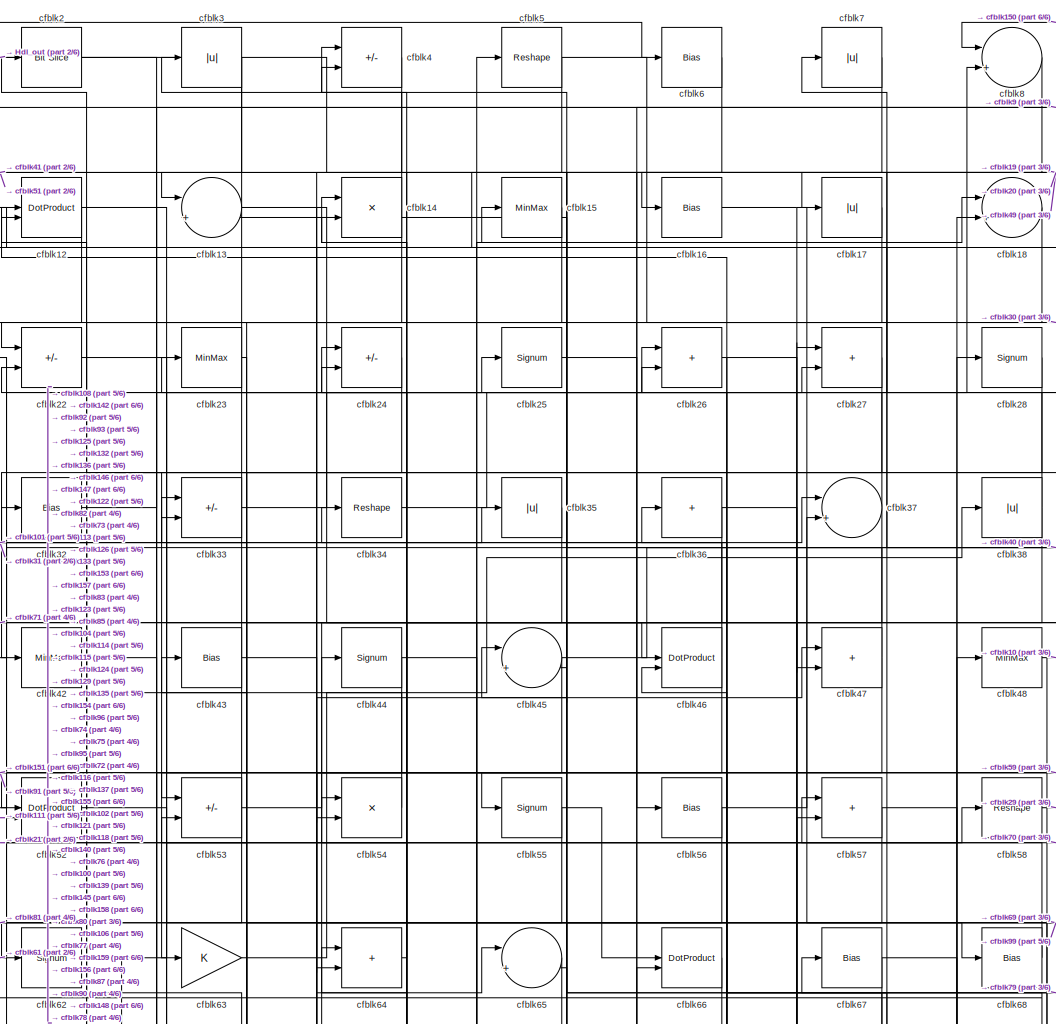
[diagram: root canvas - part 1/6, top center region]
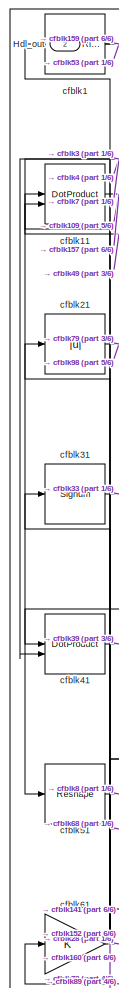
[diagram: root canvas - part 2/6, top left region]
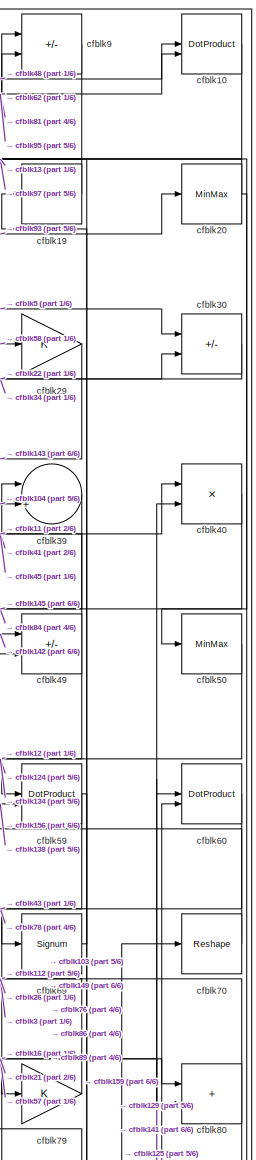
[diagram: root canvas - part 3/6, top right region]
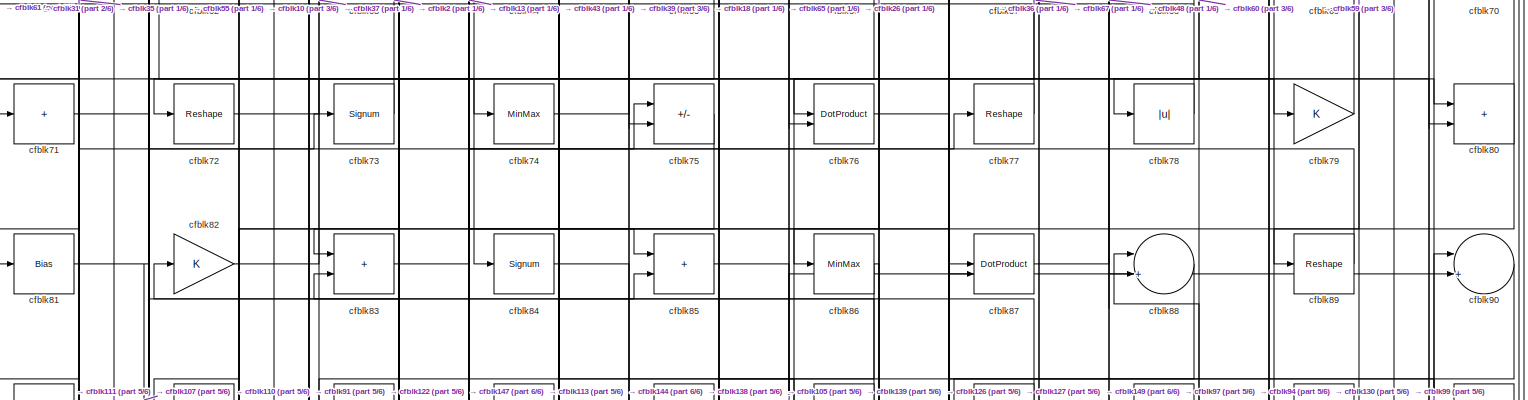
[diagram: root canvas - part 4/6, full width, middle band]
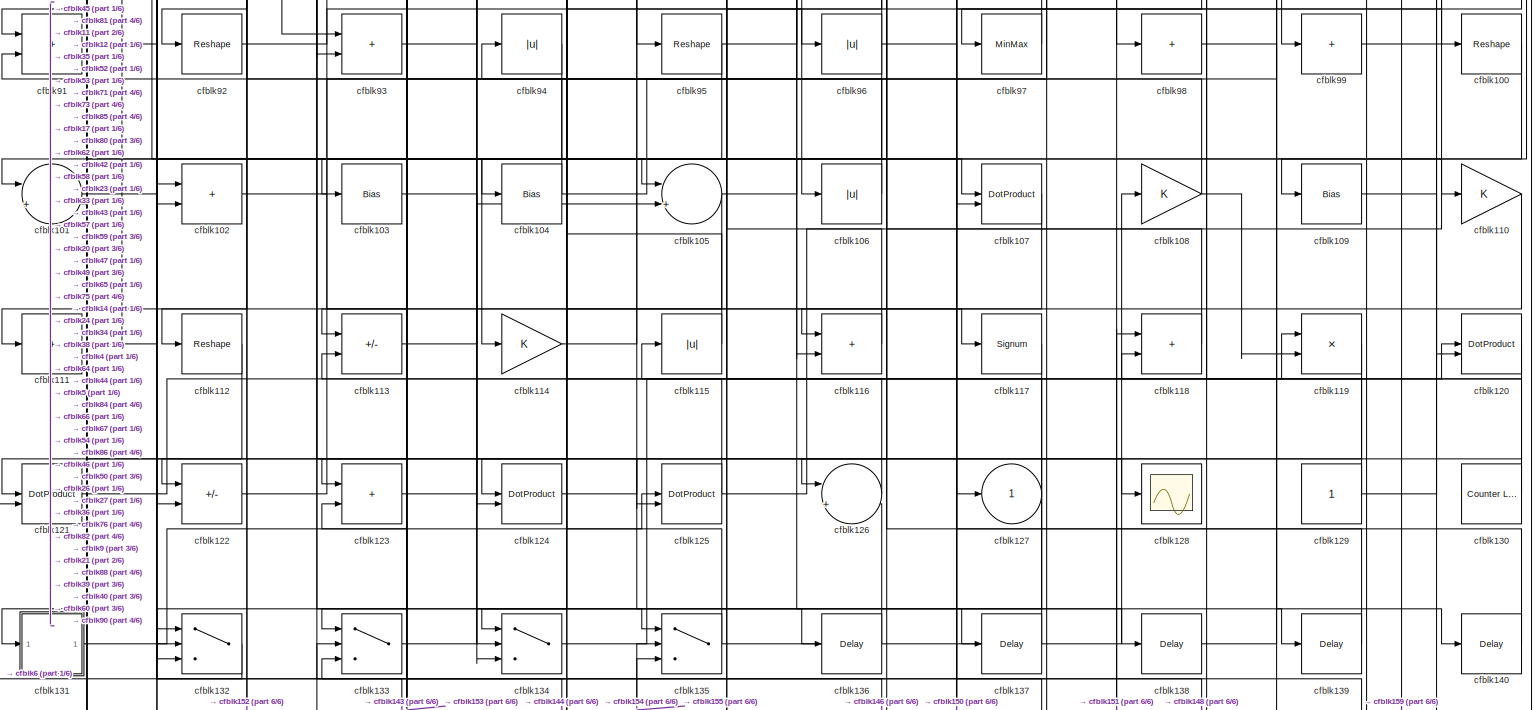
[diagram: root canvas - part 5/6, full width, bottom band]
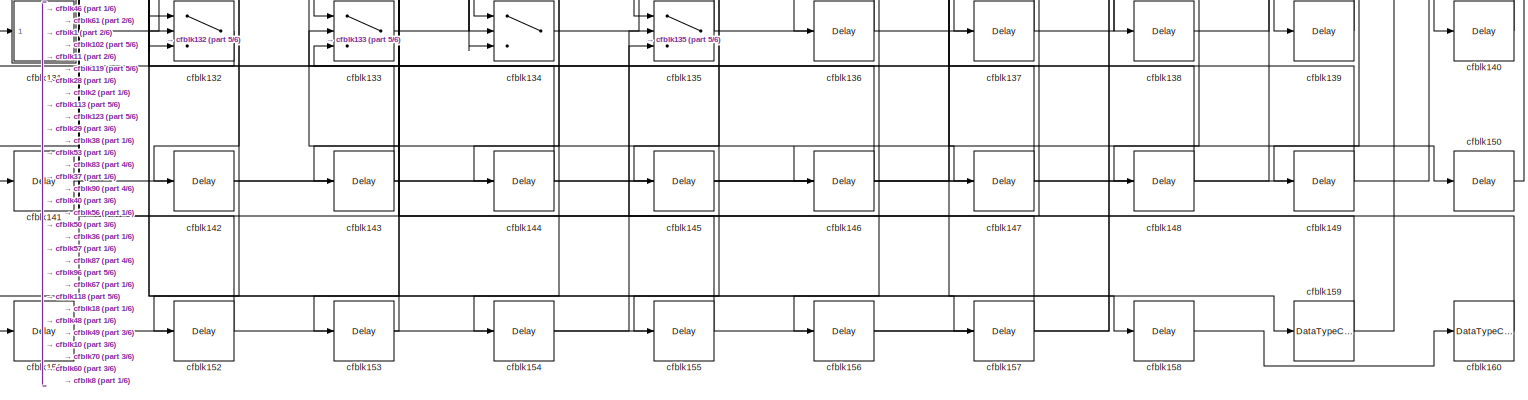
[diagram: root canvas - part 6/6, full width, bottom band]
MODEL slx_1be6892a0c39
KIND model
CONFIG AbsTol = auto
CONFIG EnableMultiTasking = off
CONFIG FixedStep = auto
CONFIG MaxStep = auto
CONFIG MinStep = auto
CONFIG RelTol = 1e-3
CONFIG SampleTimeConstraint = Unconstrained
CONFIG SolverName = VariableStepAuto
CONFIG StartTime = 0.0
CONFIG StopTime = 10.0
BLOCK [Outport] Hdl_out
  OutDataTypeStr = uint8
  Port = 2
BLOCK [Reference] cfblk1  REF=hdlsllib/Logic and Bit
Operations/Detect Rise
Nonnegative
  SourceBlock = hdlsllib/Logic and Bit\nOperations/Detect Rise\nNonnegative
  SourceType = Detect Rise Nonnegative
BLOCK [DotProduct] cfblk10
  OutDataTypeStr = uint8
BLOCK [Reshape] cfblk100
BLOCK [Sum] cfblk101
  Inputs = |++
  OutDataTypeStr = uint8
BLOCK [Sum] cfblk102
  IconShape = rectangular
  OutDataTypeStr = uint8
BLOCK [Bias] cfblk103
  Bias = 0.0
  SaturateOnIntegerOverflow = off
BLOCK [Bias] cfblk104
  Bias = 0.0
  SaturateOnIntegerOverflow = off
BLOCK [Sum] cfblk105
  Inputs = |++
  OutDataTypeStr = uint8
BLOCK [Abs] cfblk106
  OutDataTypeStr = uint8
  SaturateOnIntegerOverflow = off
BLOCK [DotProduct] cfblk107
  OutDataTypeStr = uint8
BLOCK [Gain] cfblk108
  OutDataTypeStr = uint8
BLOCK [Bias] cfblk109
  Bias = 0.0
  SaturateOnIntegerOverflow = off
BLOCK [DotProduct] cfblk11
  OutDataTypeStr = uint8
BLOCK [Gain] cfblk110
  OutDataTypeStr = uint8
BLOCK [Sum] cfblk111
  IconShape = rectangular
  Inputs = +
  OutDataTypeStr = uint8
BLOCK [Reshape] cfblk112
BLOCK [Sum] cfblk113
  IconShape = rectangular
  Inputs = +-
  OutDataTypeStr = uint8
BLOCK [Gain] cfblk114
  OutDataTypeStr = uint8
BLOCK [Abs] cfblk115
  OutDataTypeStr = uint8
  SaturateOnIntegerOverflow = off
BLOCK [Sum] cfblk116
  IconShape = rectangular
  OutDataTypeStr = uint8
BLOCK [Signum] cfblk117
BLOCK [Sum] cfblk118
  IconShape = rectangular
  OutDataTypeStr = uint8
BLOCK [Product] cfblk119
  Inputs = */
  OutDataTypeStr = uint8
  RndMeth = Zero
  SaturateOnIntegerOverflow = on
BLOCK [DotProduct] cfblk12
  OutDataTypeStr = uint8
BLOCK [DotProduct] cfblk120
  OutDataTypeStr = uint8
BLOCK [DotProduct] cfblk121
  OutDataTypeStr = uint8
BLOCK [Sum] cfblk122
  IconShape = rectangular
  Inputs = +-
  OutDataTypeStr = uint8
BLOCK [Sum] cfblk123
  IconShape = rectangular
  OutDataTypeStr = uint8
BLOCK [DotProduct] cfblk124
  OutDataTypeStr = uint8
BLOCK [DotProduct] cfblk125
  OutDataTypeStr = uint8
BLOCK [Sum] cfblk126
  Inputs = |++
  OutDataTypeStr = uint8
BLOCK [Outport] cfblk127
  OutDataTypeStr = uint8
  VectorParamsAs1DForOutWhenUnconnected = off
BLOCK [Scope] cfblk128
  Floating = off
  NumInputPorts = 1
  ScopeSpecificationString = Simulink.scopes.TimeScopeBlockCfg('CurrentConfiguration', extmgr.ConfigurationSet(extmgr.Configuration('Core','General UI',true),extmgr.Configuration('Core','Source UI',true),extmgr.Configuration('Sources','WiredSimulink',true,'DataLoggingVariableName','ScopeData2','DataLoggingSaveFormat','Array','DataLoggingLimitDataPoints',true,'DataLoggingDecimation','1'),extmgr.Configuration('Visuals','Time Do...<+868ch>
BLOCK [Constant] cfblk129
  OutDataTypeStr = uint8
  SampleTime = -1
BLOCK [Sum] cfblk13
  Inputs = |++
  OutDataTypeStr = uint8
BLOCK [Reference] cfblk130  REF=hdlsllib/Sources/Counter
Limited
  SourceBlock = hdlsllib/Sources/Counter\nLimited
  SourceType = Counter Limited
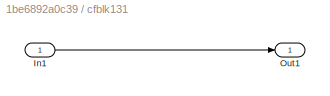
BLOCK [SubSystem] cfblk131
  LibrarySourceBlock = hdlsllib/Ports &\nSubsystems/Subsystem
BLOCK [Inport] cfblk131/In1
BLOCK [Outport] cfblk131/Out1
BLOCK [Switch] cfblk132
  InputSameDT = off
  OutDataTypeStr = uint8
  SaturateOnIntegerOverflow = off
BLOCK [Switch] cfblk133
  InputSameDT = off
  OutDataTypeStr = uint8
  SaturateOnIntegerOverflow = off
BLOCK [Switch] cfblk134
  InputSameDT = off
  OutDataTypeStr = uint8
  SaturateOnIntegerOverflow = off
BLOCK [Switch] cfblk135
  InputSameDT = off
  OutDataTypeStr = uint8
  SaturateOnIntegerOverflow = off
BLOCK [Delay] cfblk136
  InputPortMap = u0
  SampleTime = 1
BLOCK [Delay] cfblk137
  InputPortMap = u0
  SampleTime = 1
BLOCK [Delay] cfblk138
  InputPortMap = u0
  SampleTime = 1
BLOCK [Delay] cfblk139
  InputPortMap = u0
  SampleTime = 1
BLOCK [Product] cfblk14
  Inputs = */
  OutDataTypeStr = uint8
  RndMeth = Zero
  SaturateOnIntegerOverflow = on
BLOCK [Delay] cfblk140
  InputPortMap = u0
  SampleTime = 1
BLOCK [Delay] cfblk141
  InputPortMap = u0
  SampleTime = 1
BLOCK [Delay] cfblk142
  InputPortMap = u0
  SampleTime = 1
BLOCK [Delay] cfblk143
  InputPortMap = u0
  SampleTime = 1
BLOCK [Delay] cfblk144
  InputPortMap = u0
  SampleTime = 1
BLOCK [Delay] cfblk145
  InputPortMap = u0
  SampleTime = 1
BLOCK [Delay] cfblk146
  InputPortMap = u0
  SampleTime = 1
BLOCK [Delay] cfblk147
  InputPortMap = u0
  SampleTime = 1
BLOCK [Delay] cfblk148
  InputPortMap = u0
  SampleTime = 1
BLOCK [Delay] cfblk149
  InputPortMap = u0
  SampleTime = 1
BLOCK [MinMax] cfblk15
  OutDataTypeStr = uint8
BLOCK [Delay] cfblk150
  InputPortMap = u0
  SampleTime = 1
BLOCK [Delay] cfblk151
  InputPortMap = u0
  SampleTime = 1
BLOCK [Delay] cfblk152
  InputPortMap = u0
  SampleTime = 1
BLOCK [Delay] cfblk153
  InputPortMap = u0
  SampleTime = 1
BLOCK [Delay] cfblk154
  InputPortMap = u0
  SampleTime = 1
BLOCK [Delay] cfblk155
  InputPortMap = u0
  SampleTime = 1
BLOCK [Delay] cfblk156
  InputPortMap = u0
  SampleTime = 1
BLOCK [Delay] cfblk157
  InputPortMap = u0
  SampleTime = 1
BLOCK [Delay] cfblk158
  InputPortMap = u0
  SampleTime = 1
BLOCK [DataTypeConversion] cfblk159
  OutDataTypeStr = uint8
  RndMeth = Floor
  SaturateOnIntegerOverflow = off
BLOCK [Bias] cfblk16
  Bias = 0.0
  SaturateOnIntegerOverflow = off
BLOCK [DataTypeConversion] cfblk160
  OutDataTypeStr = uint8
  RndMeth = Floor
  SaturateOnIntegerOverflow = off
BLOCK [Abs] cfblk17
  OutDataTypeStr = uint8
  SaturateOnIntegerOverflow = off
BLOCK [Sum] cfblk18
  Inputs = |++
  OutDataTypeStr = uint8
BLOCK [Bias] cfblk19
  Bias = 0.0
  SaturateOnIntegerOverflow = off
BLOCK [Reference] cfblk2  REF=hdlsllib/Logic and Bit
Operations/Bit Slice
  SourceBlock = hdlsllib/Logic and Bit\nOperations/Bit Slice
  SourceType = Bit Slice
BLOCK [MinMax] cfblk20
  OutDataTypeStr = uint8
BLOCK [Abs] cfblk21
  OutDataTypeStr = uint8
  SaturateOnIntegerOverflow = off
BLOCK [Sum] cfblk22
  IconShape = rectangular
  Inputs = +-
  OutDataTypeStr = uint8
BLOCK [MinMax] cfblk23
  OutDataTypeStr = uint8
BLOCK [Sum] cfblk24
  IconShape = rectangular
  Inputs = +-
  OutDataTypeStr = uint8
BLOCK [Signum] cfblk25
BLOCK [Sum] cfblk26
  IconShape = rectangular
  OutDataTypeStr = uint8
BLOCK [Sum] cfblk27
  IconShape = rectangular
  OutDataTypeStr = uint8
BLOCK [Signum] cfblk28
BLOCK [Gain] cfblk29
  OutDataTypeStr = uint8
BLOCK [Abs] cfblk3
  OutDataTypeStr = uint8
  SaturateOnIntegerOverflow = off
BLOCK [Sum] cfblk30
  IconShape = rectangular
  Inputs = +-
  OutDataTypeStr = uint8
BLOCK [Signum] cfblk31
BLOCK [Bias] cfblk32
  Bias = 0.0
  SaturateOnIntegerOverflow = off
BLOCK [Sum] cfblk33
  IconShape = rectangular
  Inputs = +-
  OutDataTypeStr = uint8
BLOCK [Reshape] cfblk34
BLOCK [Abs] cfblk35
  OutDataTypeStr = uint8
  SaturateOnIntegerOverflow = off
BLOCK [Sum] cfblk36
  IconShape = rectangular
  Inputs = +
  OutDataTypeStr = uint8
BLOCK [Sum] cfblk37
  Inputs = |++
  OutDataTypeStr = uint8
BLOCK [Abs] cfblk38
  OutDataTypeStr = uint8
  SaturateOnIntegerOverflow = off
BLOCK [Sum] cfblk39
  Inputs = |++
  OutDataTypeStr = uint8
BLOCK [Sum] cfblk4
  IconShape = rectangular
  Inputs = +-
  OutDataTypeStr = uint8
BLOCK [Product] cfblk40
  Inputs = */
  OutDataTypeStr = uint8
  RndMeth = Zero
  SaturateOnIntegerOverflow = on
BLOCK [DotProduct] cfblk41
  OutDataTypeStr = uint8
BLOCK [MinMax] cfblk42
  OutDataTypeStr = uint8
BLOCK [Bias] cfblk43
  Bias = 0.0
  SaturateOnIntegerOverflow = off
BLOCK [Signum] cfblk44
BLOCK [Sum] cfblk45
  Inputs = |++
  OutDataTypeStr = uint8
BLOCK [DotProduct] cfblk46
  OutDataTypeStr = uint8
BLOCK [Sum] cfblk47
  IconShape = rectangular
  OutDataTypeStr = uint8
BLOCK [MinMax] cfblk48
  OutDataTypeStr = uint8
BLOCK [Sum] cfblk49
  IconShape = rectangular
  Inputs = +-
  OutDataTypeStr = uint8
BLOCK [Reshape] cfblk5
BLOCK [MinMax] cfblk50
  OutDataTypeStr = uint8
BLOCK [Reshape] cfblk51
BLOCK [DotProduct] cfblk52
  OutDataTypeStr = uint8
BLOCK [Sum] cfblk53
  IconShape = rectangular
  Inputs = +-
  OutDataTypeStr = uint8
BLOCK [Product] cfblk54
  Inputs = */
  OutDataTypeStr = uint8
  RndMeth = Zero
  SaturateOnIntegerOverflow = on
BLOCK [Signum] cfblk55
BLOCK [Bias] cfblk56
  Bias = 0.0
  SaturateOnIntegerOverflow = off
BLOCK [Sum] cfblk57
  IconShape = rectangular
  OutDataTypeStr = uint8
BLOCK [Reshape] cfblk58
BLOCK [DotProduct] cfblk59
  OutDataTypeStr = uint8
BLOCK [Bias] cfblk6
  Bias = 0.0
  SaturateOnIntegerOverflow = off
BLOCK [DotProduct] cfblk60
  OutDataTypeStr = uint8
BLOCK [Gain] cfblk61
  OutDataTypeStr = uint8
BLOCK [Signum] cfblk62
BLOCK [Gain] cfblk63
  OutDataTypeStr = uint8
BLOCK [Sum] cfblk64
  IconShape = rectangular
  OutDataTypeStr = uint8
BLOCK [Sum] cfblk65
  Inputs = |++
  OutDataTypeStr = uint8
BLOCK [DotProduct] cfblk66
  OutDataTypeStr = uint8
BLOCK [Bias] cfblk67
  Bias = 0.0
  SaturateOnIntegerOverflow = off
BLOCK [Bias] cfblk68
  Bias = 0.0
  SaturateOnIntegerOverflow = off
BLOCK [Signum] cfblk69
BLOCK [Abs] cfblk7
  OutDataTypeStr = uint8
  SaturateOnIntegerOverflow = off
BLOCK [Reshape] cfblk70
BLOCK [Sum] cfblk71
  IconShape = rectangular
  Inputs = +
  OutDataTypeStr = uint8
BLOCK [Reshape] cfblk72
BLOCK [Signum] cfblk73
BLOCK [MinMax] cfblk74
  OutDataTypeStr = uint8
BLOCK [Sum] cfblk75
  IconShape = rectangular
  Inputs = +-
  OutDataTypeStr = uint8
BLOCK [DotProduct] cfblk76
  OutDataTypeStr = uint8
BLOCK [Reshape] cfblk77
BLOCK [Abs] cfblk78
  OutDataTypeStr = uint8
  SaturateOnIntegerOverflow = off
BLOCK [Gain] cfblk79
  OutDataTypeStr = uint8
BLOCK [Sum] cfblk8
  Inputs = |++
  OutDataTypeStr = uint8
BLOCK [Sum] cfblk80
  IconShape = rectangular
  OutDataTypeStr = uint8
BLOCK [Bias] cfblk81
  Bias = 0.0
  SaturateOnIntegerOverflow = off
BLOCK [Gain] cfblk82
  OutDataTypeStr = uint8
BLOCK [Sum] cfblk83
  IconShape = rectangular
  OutDataTypeStr = uint8
BLOCK [Signum] cfblk84
BLOCK [Sum] cfblk85
  IconShape = rectangular
  OutDataTypeStr = uint8
BLOCK [MinMax] cfblk86
  OutDataTypeStr = uint8
BLOCK [DotProduct] cfblk87
  OutDataTypeStr = uint8
BLOCK [Sum] cfblk88
  Inputs = |++
  OutDataTypeStr = uint8
BLOCK [Reshape] cfblk89
BLOCK [Sum] cfblk9
  IconShape = rectangular
  Inputs = +-
  OutDataTypeStr = uint8
BLOCK [Sum] cfblk90
  Inputs = |++
  OutDataTypeStr = uint8
BLOCK [Sum] cfblk91
  IconShape = rectangular
  OutDataTypeStr = uint8
BLOCK [Reshape] cfblk92
BLOCK [Sum] cfblk93
  IconShape = rectangular
  OutDataTypeStr = uint8
BLOCK [Abs] cfblk94
  OutDataTypeStr = uint8
  SaturateOnIntegerOverflow = off
BLOCK [Reshape] cfblk95
BLOCK [Abs] cfblk96
  OutDataTypeStr = uint8
  SaturateOnIntegerOverflow = off
BLOCK [MinMax] cfblk97
  OutDataTypeStr = uint8
BLOCK [Sum] cfblk98
  IconShape = rectangular
  Inputs = +
  OutDataTypeStr = uint8
BLOCK [Sum] cfblk99
  IconShape = rectangular
  Inputs = +
  OutDataTypeStr = uint8
NET cfblk100:1 -> cfblk101:1, cfblk116:2
LINE cfblk101:1 -> cfblk35:1
NET cfblk102:1 -> cfblk117:1, cfblk66:2
LINE cfblk103:1 -> cfblk134:2
NET cfblk104:1 -> cfblk39:2, cfblk43:1
NET cfblk105:1 -> cfblk134:1, cfblk88:2
LINE cfblk106:1 -> cfblk24:1
LINE cfblk107:1 -> cfblk111:1
NET cfblk108:1 -> cfblk119:2, cfblk12:1
LINE cfblk109:1 -> cfblk120:2
NET cfblk10:1 -> cfblk149:1, cfblk76:2
LINE cfblk110:1 -> cfblk116:1
NET cfblk111:1 -> cfblk52:2, cfblk73:1
LINE cfblk112:1 -> cfblk121:1
LINE cfblk113:1 -> cfblk75:1
NET cfblk114:1 -> cfblk34:1, cfblk5:1
LINE cfblk115:1 -> cfblk4:1
LINE cfblk116:1 -> cfblk45:1
NET cfblk117:1 -> cfblk132:3, cfblk137:1
LINE cfblk118:1 -> cfblk46:2
LINE cfblk119:1 -> cfblk152:1
NET cfblk11:1 -> cfblk109:1, cfblk157:1
NET cfblk120:1 -> cfblk118:2, cfblk131:1
LINE cfblk121:1 -> cfblk119:1
LINE cfblk122:1 -> cfblk58:1
NET cfblk123:1 -> cfblk47:1, cfblk65:1
LINE cfblk124:1 -> cfblk128:1
NET cfblk125:1 -> cfblk115:1, cfblk60:2
LINE cfblk126:1 -> cfblk33:1
NET cfblk129:1 -> cfblk14:2, cfblk40:2
NET cfblk12:1 -> cfblk125:2, cfblk132:2, cfblk59:1
LINE cfblk130:1 -> cfblk88:1
LINE cfblk131/In1:1 -> cfblk131/Out1:1
LINE cfblk131:1 -> cfblk125:1
LINE cfblk132:1 -> cfblk6:1
NET cfblk133:1 -> cfblk105:2, cfblk135:1
LINE cfblk134:1 -> cfblk120:1
NET cfblk135:1 -> cfblk108:1, cfblk64:1
LINE cfblk136:1 -> cfblk126:2
LINE cfblk137:1 -> cfblk65:2
LINE cfblk138:1 -> cfblk59:2
LINE cfblk139:1 -> cfblk27:1
NET cfblk13:1 -> cfblk47:2, cfblk75:2, cfblk87:2
LINE cfblk140:1 -> cfblk12:2
LINE cfblk141:1 -> cfblk60:1
LINE cfblk142:1 -> cfblk49:1
LINE cfblk143:1 -> cfblk102:1
LINE cfblk144:1 -> cfblk133:3
LINE cfblk145:1 -> cfblk57:2
LINE cfblk146:1 -> cfblk132:1
LINE cfblk147:1 -> cfblk83:2
LINE cfblk148:1 -> cfblk133:2
LINE cfblk149:1 -> cfblk87:1
NET cfblk14:1 -> cfblk22:1, cfblk4:2
LINE cfblk150:1 -> cfblk8:1
LINE cfblk151:1 -> cfblk118:1
LINE cfblk152:1 -> cfblk11:2
LINE cfblk153:1 -> cfblk123:2
LINE cfblk154:1 -> cfblk135:3
LINE cfblk155:1 -> cfblk135:2
LINE cfblk156:1 -> cfblk18:2
LINE cfblk157:1 -> cfblk53:2
LINE cfblk158:1 -> cfblk160:1
NET cfblk159:1 -> cfblk113:2, cfblk67:1, cfblk70:1
LINE cfblk15:1 -> cfblk52:1
LINE cfblk160:1 -> cfblk1:1
NET cfblk16:1 -> cfblk68:1, cfblk80:2
LINE cfblk17:1 -> cfblk92:1
LINE cfblk18:1 -> cfblk83:1
LINE cfblk19:1 -> cfblk16:1
LINE cfblk1:1 -> cfblk159:1
NET cfblk20:1 -> cfblk13:1, cfblk50:1
NET cfblk21:1 -> cfblk79:1, cfblk98:1
LINE cfblk22:1 -> cfblk46:1
LINE cfblk23:1 -> cfblk113:1
NET cfblk24:1 -> cfblk62:1, cfblk63:1
LINE cfblk25:1 -> cfblk56:1
NET cfblk26:1 -> cfblk100:1, cfblk76:1
NET cfblk27:1 -> cfblk42:1, cfblk53:1
LINE cfblk28:1 -> cfblk142:1
LINE cfblk29:1 -> cfblk143:1
NET cfblk2:1 -> cfblk146:1, cfblk147:1
LINE cfblk30:1 -> cfblk22:2
LINE cfblk31:1 -> cfblk33:2
LINE cfblk32:1 -> cfblk26:1
LINE cfblk33:1 -> cfblk27:2
LINE cfblk34:1 -> cfblk30:2
LINE cfblk35:1 -> cfblk71:1
NET cfblk36:1 -> cfblk102:2, cfblk158:1
NET cfblk37:1 -> cfblk154:1, cfblk23:1
NET cfblk38:1 -> cfblk124:1, cfblk153:1, cfblk7:1
LINE cfblk39:1 -> cfblk84:1
NET cfblk3:1 -> cfblk41:2, cfblk49:2
LINE cfblk40:1 -> cfblk145:1
LINE cfblk41:1 -> cfblk39:1
LINE cfblk42:1 -> cfblk136:1
NET cfblk43:1 -> cfblk69:1, cfblk85:1
NET cfblk44:1 -> cfblk93:2, cfblk95:1
NET cfblk45:1 -> cfblk40:1, cfblk91:1
NET cfblk46:1 -> cfblk151:1, cfblk24:2
NET cfblk47:1 -> cfblk15:1, cfblk54:2
NET cfblk48:1 -> cfblk10:1, cfblk148:1
NET cfblk49:1 -> cfblk11:1, cfblk134:3
LINE cfblk4:1 -> cfblk51:1
NET cfblk50:1 -> cfblk124:2, cfblk156:1
LINE cfblk51:1 -> cfblk8:2
LINE cfblk52:1 -> cfblk99:1
NET cfblk53:1 -> Hdl_out:1, cfblk122:2, cfblk44:1
LINE cfblk54:1 -> cfblk32:1
NET cfblk55:1 -> cfblk66:1, cfblk81:1
NET cfblk56:1 -> cfblk155:1, cfblk37:2
NET cfblk57:1 -> cfblk133:1, cfblk80:1
LINE cfblk58:1 -> cfblk29:1
NET cfblk59:1 -> cfblk103:1, cfblk86:1, cfblk89:1
NET cfblk5:1 -> cfblk30:1, cfblk64:2
LINE cfblk60:1 -> cfblk78:1
NET cfblk61:1 -> cfblk141:1, cfblk28:1
NET cfblk62:1 -> cfblk25:1, cfblk93:1, cfblk9:2
LINE cfblk63:1 -> cfblk38:1
LINE cfblk64:1 -> cfblk14:1
LINE cfblk65:1 -> cfblk72:1
LINE cfblk66:1 -> cfblk121:2
NET cfblk67:1 -> cfblk106:1, cfblk90:2
LINE cfblk68:1 -> cfblk21:1
LINE cfblk69:1 -> cfblk19:1
LINE cfblk6:1 -> cfblk104:1
LINE cfblk70:1 -> cfblk57:1
LINE cfblk71:1 -> cfblk110:1
LINE cfblk72:1 -> cfblk74:1
LINE cfblk73:1 -> cfblk2:1
LINE cfblk74:1 -> cfblk18:1
LINE cfblk75:1 -> cfblk122:1
LINE cfblk76:1 -> cfblk127:1
LINE cfblk77:1 -> cfblk36:1
NET cfblk78:1 -> cfblk13:2, cfblk61:1
LINE cfblk79:1 -> cfblk3:1
NET cfblk7:1 -> cfblk41:1, cfblk55:1
NET cfblk80:1 -> cfblk112:1, cfblk26:2
NET cfblk81:1 -> cfblk107:1, cfblk10:2
LINE cfblk82:1 -> cfblk37:1
LINE cfblk83:1 -> cfblk77:1
LINE cfblk84:1 -> cfblk138:1
LINE cfblk85:1 -> cfblk139:1
NET cfblk86:1 -> cfblk105:1, cfblk126:1
LINE cfblk87:1 -> cfblk48:1
LINE cfblk88:1 -> cfblk94:1
LINE cfblk89:1 -> cfblk31:1
NET cfblk8:1 -> cfblk17:1, cfblk45:2
LINE cfblk90:1 -> cfblk144:1
NET cfblk91:1 -> cfblk107:2, cfblk85:2
LINE cfblk92:1 -> cfblk96:1
LINE cfblk93:1 -> cfblk20:1
LINE cfblk94:1 -> cfblk114:1
NET cfblk95:1 -> cfblk123:1, cfblk91:2, cfblk9:1
NET cfblk96:1 -> cfblk101:2, cfblk150:1, cfblk54:1
LINE cfblk97:1 -> cfblk82:1
LINE cfblk98:1 -> cfblk140:1
LINE cfblk99:1 -> cfblk90:1
LINE cfblk9:1 -> cfblk97:1
note: NET lines group one-source signal fan-out (src -> all destinations, sorted); 1:1 wires keep LINE
